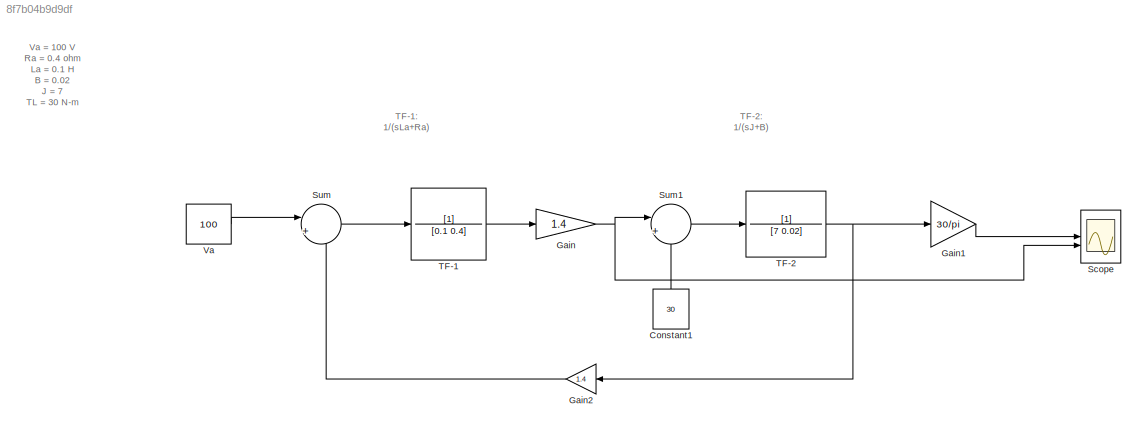
MODEL slx_8f7b04b9d9df
KIND model
CONFIG AbsTol = auto
CONFIG EnableMultiTasking = off
CONFIG FixedStep = auto
CONFIG MaxStep = 1e-4
CONFIG MinStep = auto
CONFIG RelTol = 1e-3
CONFIG SampleTimeConstraint = Unconstrained
CONFIG SolverName = ode23tb
CONFIG StartTime = 0.0
CONFIG StopTime = 10.0
BLOCK [Constant] Constant1
  NameLocation = right
  Value = 30
BLOCK [Gain] Gain
  Gain = 1.4
BLOCK [Gain] Gain1
  Gain = 30/pi
BLOCK [Gain] Gain2
  Gain = 1.4
  NameLocation = top
BLOCK [Scope] Scope
  Floating = off
  NumInputPorts = 2
  ScopeSpecificationString = Simulink.scopes.TimeScopeBlockCfg('CurrentConfiguration', extmgr.ConfigurationSet(extmgr.Configuration('Core','General UI',true),extmgr.Configuration('Core','Source UI',true),extmgr.Configuration('Sources','WiredSimulink',true),extmgr.Configuration('Visuals','Time Domain',true,'SerializedDisplays',{struct('MinYLimReal','-78.13167','MaxYLimReal','698.67094','YLabelReal','','MinYLimMag','0.00000','M...<+2305ch>
BLOCK [Sum] Sum
  Inputs = |+-
BLOCK [Sum] Sum1
  Inputs = |+-
BLOCK [TransferFcn] TF-1
  Denominator = [0.1 0.4]
BLOCK [TransferFcn] TF-2
  Denominator = [7 0.02]
BLOCK [Constant] Va
  Value = 100
ANNOTATION (root): TF-1: 1/(sLa+Ra)
ANNOTATION (root): TF-2: 1/(sJ+B)
ANNOTATION (root): Va = 100 V Ra = 0.4 ohm La = 0.1 H B = 0.02 J = 7 TL = 30 N-m K =1.4
LINE Constant1:1 -> Sum1:2
LINE Gain1:1 -> Scope:1
LINE Gain2:1 -> Sum:2
NET Gain:1 -> Scope:2, Sum1:1
LINE Sum1:1 -> TF-2:1
LINE Sum:1 -> TF-1:1
LINE TF-1:1 -> Gain:1
NET TF-2:1 -> Gain1:1, Gain2:1
LINE Va:1 -> Sum:1
note: NET lines group one-source signal fan-out (src -> all destinations, sorted); 1:1 wires keep LINE
